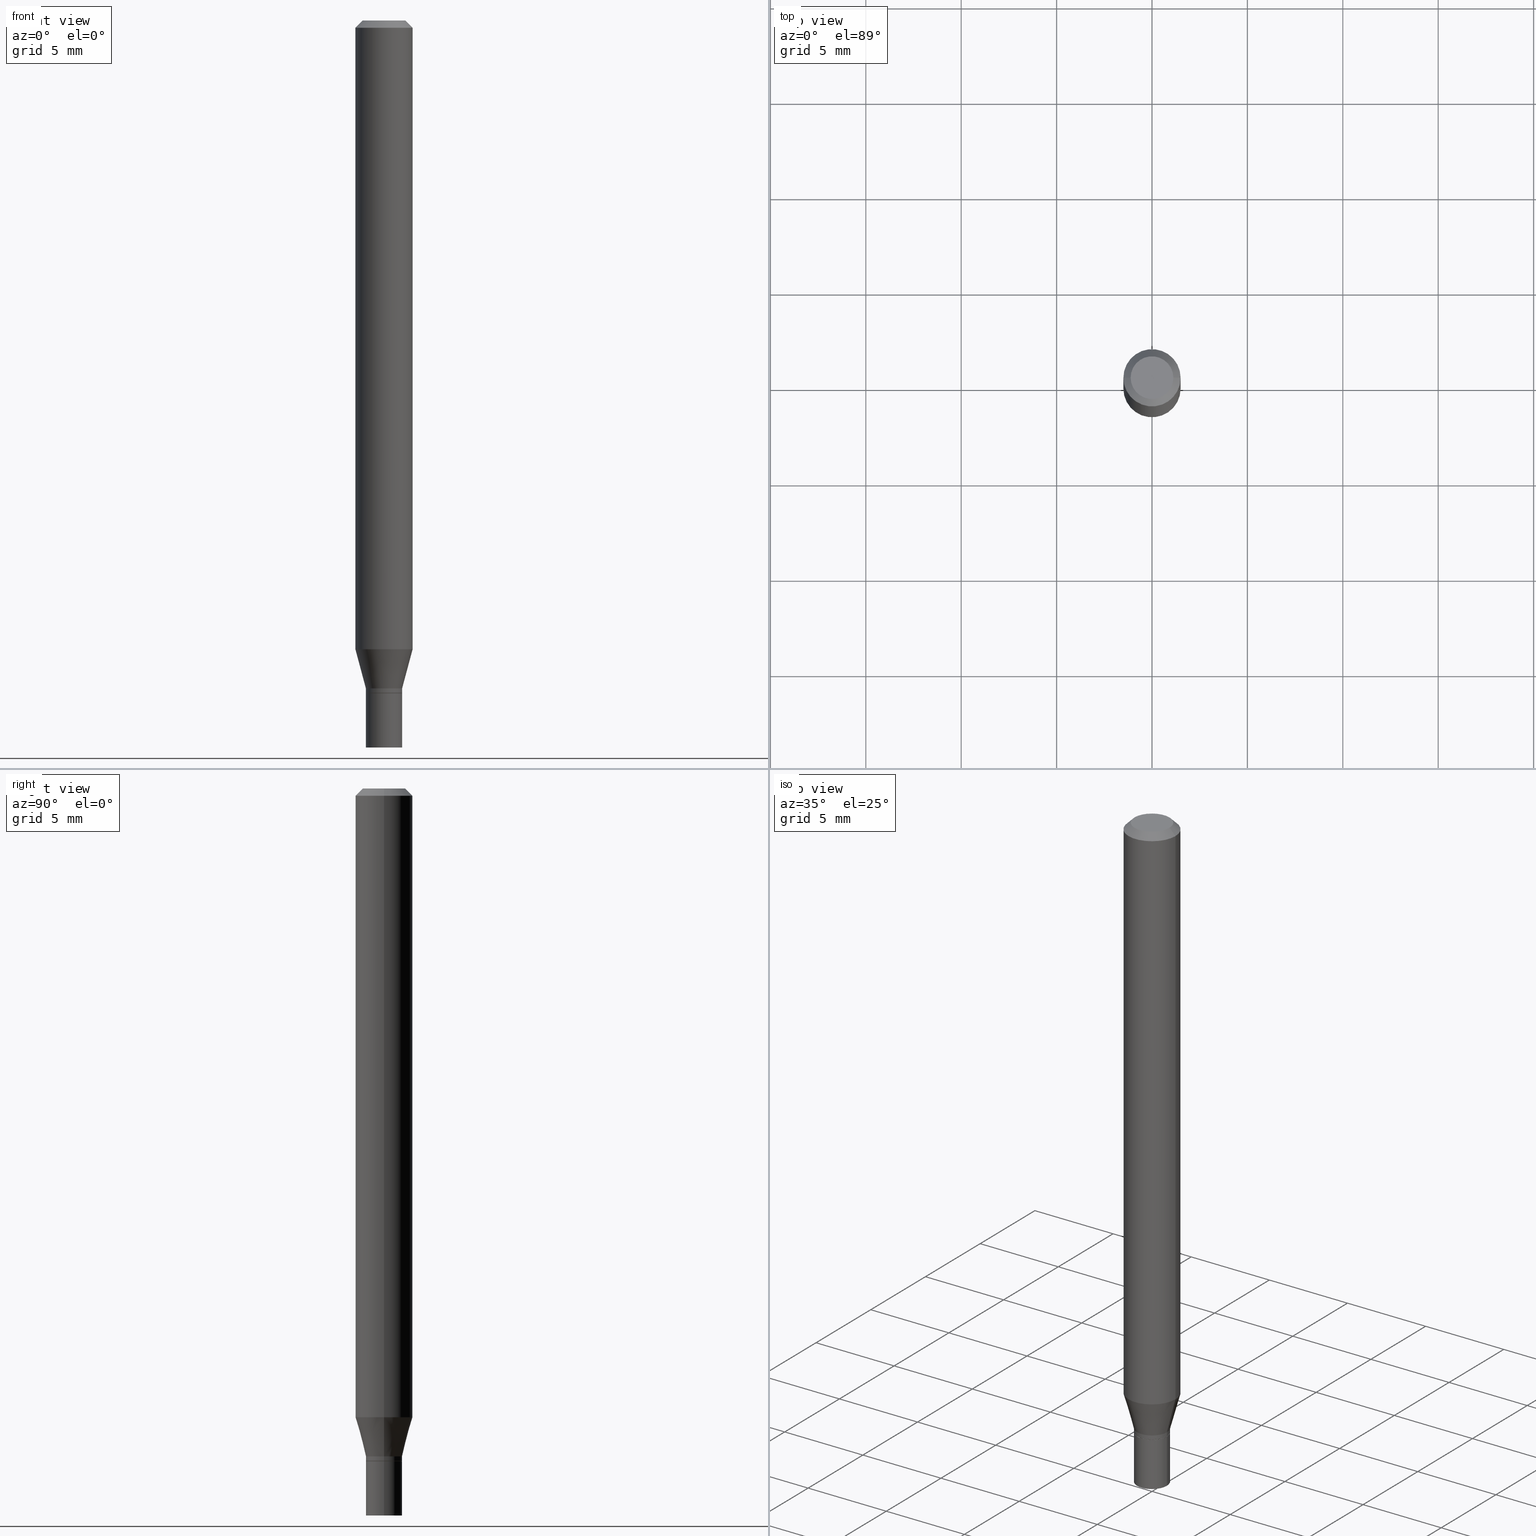
[diagram: canonical four-view strip — front | top / right | iso, engineering-drawing reading convention]
A machine part, canonical four-view strip (front | top / right | iso — engineering-drawing reading convention). The complete STEP part file that produces these views, byte-faithful:
ISO-10303-21;
HEADER;
FILE_DESCRIPTION (( 'STEP AP203' ),
    '1' );
FILE_NAME ('09289.STEP',
    '2024-03-14T18:22:06',
    ( '' ),
    ( '' ),
    'SwSTEP 2.0',
    'SolidWorks 2023',
    '' );
FILE_SCHEMA (( 'CONFIG_CONTROL_DESIGN' ));
ENDSEC;

DATA;
#1 = VECTOR ( 'NONE', #28, 39.37007874015748143 ) ;
#2 = EDGE_LOOP ( 'NONE', ( #115, #268, #117, #267 ) ) ;
#3 = DIRECTION ( 'NONE',  ( 2.438088387897960049E-29, -3.491481338843145188E-15, -1.000000000000000000 ) ) ;
#4 = PLANE ( 'NONE',  #407 ) ;
#5 = PLANE ( 'NONE',  #396 ) ;
#6 = ORIENTED_EDGE ( 'NONE', *, *, #340, .F. ) ;
#7 = DIRECTION ( 'NONE',  ( -2.445468806185136597E-29, 3.491481338843145583E-15, 1.000000000000000000 ) ) ;
#8 = CARTESIAN_POINT ( 'NONE',  ( 3.393821609223732485E-29, -4.845477802046516210E-15, -1.387799999999999923 ) ) ;
#9 = CONICAL_SURFACE ( 'NONE', #259, 0.05904999999999999832, 0.7853981633974445042 ) ;
#10 = VERTEX_POINT ( 'NONE', #406 ) ;
#11 = VECTOR ( 'NONE', #282, 39.37007874015748143 ) ;
#12 = VERTEX_POINT ( 'NONE', #187 ) ;
#13 = ORIENTED_EDGE ( 'NONE', *, *, #412, .T. ) ;
#14 = APPROVAL ( #199, 'UNSPECIFIED' ) ;
#15 = APPROVAL_DATE_TIME ( #113, #291 ) ;
#16 = CYLINDRICAL_SURFACE ( 'NONE', #210, 0.05904999999999999832 ) ;
#17 = DIRECTION ( 'NONE',  ( -2.445468806185136597E-29, 3.491481338843145583E-15, 1.000000000000000000 ) ) ;
#18 = COORDINATED_UNIVERSAL_TIME_OFFSET ( 5, 0, .BEHIND. ) ;
#19 = ORIENTED_EDGE ( 'NONE', *, *, #315, .T. ) ;
#20 = AXIS2_PLACEMENT_3D ( 'NONE', #203, #126, #284 ) ;
#21 = CIRCLE ( 'NONE', #398, 0.03739999999999964186 ) ;
#22 = ORIENTED_EDGE ( 'NONE', *, *, #238, .F. ) ;
#23 = ORIENTED_EDGE ( 'NONE', *, *, #164, .F. ) ;
#24 = ADVANCED_FACE ( 'NONE', ( #335 ), #441, .T. ) ;
#25 = APPROVAL_DATE_TIME ( #241, #14 ) ;
#26 = COORDINATED_UNIVERSAL_TIME_OFFSET ( 5, 0, .BEHIND. ) ;
#27 = LINE ( 'NONE', #166, #388 ) ;
#28 = DIRECTION ( 'NONE',  ( -2.445468806185136877E-29, 3.491481338843145188E-15, 1.000000000000000000 ) ) ;
#29 = AXIS2_PLACEMENT_3D ( 'NONE', #214, #138, #256 ) ;
#30 = VECTOR ( 'NONE', #101, 39.37007874015748143 ) ;
#31 = CARTESIAN_POINT ( 'NONE',  ( 3.369856014923118508E-29, -4.811261284925855529E-15, -1.378000000000000114 ) ) ;
#32 = DIRECTION ( 'NONE',  ( -2.445468806185136597E-29, 3.491481338843145583E-15, 1.000000000000000000 ) ) ;
#33 = DIRECTION ( 'NONE',  ( -2.445468806185136597E-29, 3.491481338843145583E-15, 1.000000000000000000 ) ) ;
#34 = EDGE_CURVE ( 'NONE', #289, #409, #54, .T. ) ;
#35 = CARTESIAN_POINT ( 'NONE',  ( 0.03740000000000000269, -5.498384812410185366E-15, -1.500000000000000222 ) ) ;
#36 = DIRECTION ( 'NONE',  ( -2.445468806185136597E-29, 3.491481338843145583E-15, 1.000000000000000000 ) ) ;
#37 = EDGE_CURVE ( 'NONE', #451, #297, #423, .T. ) ;
#38 = DIRECTION ( 'NONE',  ( -2.445468806185136597E-29, 3.491481338843145583E-15, 1.000000000000000000 ) ) ;
#39 = DIRECTION ( 'NONE',  ( -2.438088387897960049E-29, 3.491481338843145188E-15, 1.000000000000000000 ) ) ;
#40 = SHAPE_DEFINITION_REPRESENTATION ( #49, #360 ) ;
#41 = AXIS2_PLACEMENT_3D ( 'NONE', #316, #432, #239 ) ;
#42 = LOCAL_TIME ( 14, 22, 6.000000000000000000, #195 ) ;
#43 = CARTESIAN_POINT ( 'NONE',  ( 0.03740000000000000269, -5.106640606191984188E-15, -1.387800000000000145 ) ) ;
#44 = FACE_OUTER_BOUND ( 'NONE', #58, .T. ) ;
#45 = ORIENTED_EDGE ( 'NONE', *, *, #383, .T. ) ;
#46 = ORIENTED_EDGE ( 'NONE', *, *, #147, .T. ) ;
#47 = CIRCLE ( 'NONE', #215, 0.03690000000000000224 ) ;
#48 = CIRCLE ( 'NONE', #122, 0.03739999999999964880 ) ;
#49 = PRODUCT_DEFINITION_SHAPE ( 'NONE', 'NONE',  #277 ) ;
#50 = EDGE_CURVE ( 'NONE', #442, #266, #47, .T. ) ;
#51 = ORIENTED_EDGE ( 'NONE', *, *, #331, .T. ) ;
#52 = DIRECTION ( 'NONE',  ( -2.445468806185136597E-29, 3.491481338843145583E-15, 1.000000000000000000 ) ) ;
#53 = ORIENTED_EDGE ( 'NONE', *, *, #303, .T. ) ;
#54 = LINE ( 'NONE', #425, #292 ) ;
#55 = AXIS2_PLACEMENT_3D ( 'NONE', #141, #401, #181 ) ;
#56 = CC_DESIGN_APPROVAL ( #291, ( #277 ) ) ;
#57 = FACE_OUTER_BOUND ( 'NONE', #159, .T. ) ;
#58 = EDGE_LOOP ( 'NONE', ( #87, #448, #111, #436 ) ) ;
#59 = PERSON_AND_ORGANIZATION_ROLE ( 'design_owner' ) ;
#60 = CARTESIAN_POINT ( 'NONE',  ( 3.393821609223732485E-29, -4.845477802046516210E-15, -1.387799999999999923 ) ) ;
#61 = DATE_TIME_ROLE ( 'classification_date' ) ;
#62 = FACE_OUTER_BOUND ( 'NONE', #326, .T. ) ;
#63 = CARTESIAN_POINT ( 'NONE',  ( 3.668203209277704895E-29, -5.237222008264718177E-15, -1.500000000000000222 ) ) ;
#64 = ADVANCED_FACE ( 'NONE', ( #198 ), #200, .T. ) ;
#65 = ADVANCED_FACE ( 'NONE', ( #62 ), #192, .F. ) ;
#66 = DIRECTION ( 'NONE',  ( -2.445468806185136597E-29, 3.491481338843145583E-15, 1.000000000000000000 ) ) ;
#67 = LINE ( 'NONE', #420, #202 ) ;
#68 = AXIS2_PLACEMENT_3D ( 'NONE', #93, #32, #236 ) ;
#69 = CONICAL_SURFACE ( 'NONE', #237, 0.03739999999999964186, 0.2617993877991505736 ) ;
#70 = ORIENTED_EDGE ( 'NONE', *, *, #303, .F. ) ;
#71 = CARTESIAN_POINT ( 'NONE',  ( 0.05904999999999999832, -4.574846268510561447E-16, -0.01499999999999999944 ) ) ;
#72 = LINE ( 'NONE', #139, #338 ) ;
#73 = EDGE_LOOP ( 'NONE', ( #151, #222 ) ) ;
#74 = DIRECTION ( 'NONE',  ( -1.000000000000000000, 6.982962677686265922E-15, -4.876176775795935793E-29 ) ) ;
#75 = DIRECTION ( 'NONE',  ( 1.000000000000000000, -6.982962677686274599E-15, 0.000000000000000000 ) ) ;
#76 = ADVANCED_FACE ( 'NONE', ( #465 ), #418, .T. ) ;
#77 = ORIENTED_EDGE ( 'NONE', *, *, #262, .T. ) ;
#78 = DIRECTION ( 'NONE',  ( -1.000000000000000000, 6.982962677686266711E-15, 0.000000000000000000 ) ) ;
#79 = DIRECTION ( 'NONE',  ( -2.445468806185136597E-29, 3.491481338843145583E-15, 1.000000000000000000 ) ) ;
#80 = ORIENTED_EDGE ( 'NONE', *, *, #88, .F. ) ;
#81 = EDGE_CURVE ( 'NONE', #10, #294, #365, .T. ) ;
#82 = ORIENTED_EDGE ( 'NONE', *, *, #147, .F. ) ;
#83 = APPROVAL_PERSON_ORGANIZATION ( #220, #271, #120 ) ;
#84 = DIMENSIONAL_EXPONENTS ( 1.000000000000000000, 0.000000000000000000, 0.000000000000000000, 0.000000000000000000, 0.000000000000000000, 0.000000000000000000, 0.000000000000000000 ) ;
#85 = EDGE_LOOP ( 'NONE', ( #6, #226, #293, #146 ) ) ;
#86 = DIRECTION ( 'NONE',  ( 1.000000000000000000, -6.982962677686261189E-15, 0.000000000000000000 ) ) ;
#87 = ORIENTED_EDGE ( 'NONE', *, *, #288, .T. ) ;
#88 = EDGE_CURVE ( 'NONE', #289, #230, #327, .T. ) ;
#89 = AXIS2_PLACEMENT_3D ( 'NONE', #321, #105, #75 ) ;
#90 = DIRECTION ( 'NONE',  ( -2.445468806185136597E-29, 3.491481338843145583E-15, 1.000000000000000000 ) ) ;
#91 = LINE ( 'NONE', #343, #1 ) ;
#92 = CC_DESIGN_DATE_AND_TIME_ASSIGNMENT ( #419, #61, ( #352 ) ) ;
#93 = CARTESIAN_POINT ( 'NONE',  ( 0.000000000000000000, 0.000000000000000000, 0.000000000000000000 ) ) ;
#94 = LOCAL_TIME ( 14, 22, 6.000000000000000000, #371 ) ;
#95 = CARTESIAN_POINT ( 'NONE',  ( 0.05904999999999999832, -4.647161662000212105E-16, -0.01499999999999999944 ) ) ;
#96 = DESIGN_CONTEXT ( 'detailed design', #193, 'design' ) ;
#97 = ADVANCED_FACE ( 'NONE', ( #318 ), #351, .T. ) ;
#98 = CARTESIAN_POINT ( 'NONE',  ( -2.903582104602009454E-45, 4.145545716378002760E-31, 1.187331483132478339E-16 ) ) ;
#99 = ORIENTED_EDGE ( 'NONE', *, *, #362, .T. ) ;
#100 = AXIS2_PLACEMENT_3D ( 'NONE', #320, #36, #206 ) ;
#101 = DIRECTION ( 'NONE',  ( -2.445468806185136877E-29, 3.491481338843145188E-15, 1.000000000000000000 ) ) ;
#102 = CALENDAR_DATE ( 2024, 14, 3 ) ;
#103 = CARTESIAN_POINT ( 'NONE',  ( 3.392598874820640244E-29, -4.843732061377097073E-15, -1.387300000000000200 ) ) ;
#104 = LINE ( 'NONE', #246, #116 ) ;
#105 = DIRECTION ( 'NONE',  ( -2.445468806185136597E-29, 3.491481338843145583E-15, 1.000000000000000000 ) ) ;
#106 = FACE_OUTER_BOUND ( 'NONE', #73, .T. ) ;
#107 = VECTOR ( 'NONE', #379, 39.37007874015748143 ) ;
#108 = AXIS2_PLACEMENT_3D ( 'NONE', #8, #404, #458 ) ;
#109 = ORIENTED_EDGE ( 'NONE', *, *, #288, .F. ) ;
#110 = ORIENTED_EDGE ( 'NONE', *, *, #164, .T. ) ;
#111 = ORIENTED_EDGE ( 'NONE', *, *, #188, .F. ) ;
#112 = ORIENTED_EDGE ( 'NONE', *, *, #37, .F. ) ;
#113 = DATE_AND_TIME ( #162, #308 ) ;
#114 = CLOSED_SHELL ( 'NONE', ( #169, #97, #217, #229, #140, #322, #283, #64, #65, #170, #24, #440 ) ) ;
#115 = ORIENTED_EDGE ( 'NONE', *, *, #34, .F. ) ;
#116 = VECTOR ( 'NONE', #314, 39.37007874015748143 ) ;
#117 = ORIENTED_EDGE ( 'NONE', *, *, #231, .T. ) ;
#118 = PERSON_AND_ORGANIZATION ( #403, #455 ) ;
#119 = ORIENTED_EDGE ( 'NONE', *, *, #81, .F. ) ;
#120 = APPROVAL_ROLE ( '' ) ;
#121 = APPROVAL_STATUS ( 'not_yet_approved' ) ;
#122 = AXIS2_PLACEMENT_3D ( 'NONE', #243, #380, #353 ) ;
#123 = CARTESIAN_POINT ( 'NONE',  ( -0.03690000000000000224, -4.580638305376930884E-15, -1.387799999999999923 ) ) ;
#124 = DIRECTION ( 'NONE',  ( -2.445468806185136597E-29, 3.491481338843145583E-15, 1.000000000000000000 ) ) ;
#125 = CC_DESIGN_PERSON_AND_ORGANIZATION_ASSIGNMENT ( #264, #337, ( #352 ) ) ;
#126 = DIRECTION ( 'NONE',  ( -2.445468806185136597E-29, 3.491481338843145583E-15, 1.000000000000000000 ) ) ;
#127 = MANIFOLD_SOLID_BREP ( 'Body-Move/Copy2[2]', #114 ) ;
#128 = CLOSED_SHELL ( 'NONE', ( #461, #137, #76, #245 ) ) ;
#129 = CARTESIAN_POINT ( 'NONE',  ( 3.369856014923118508E-29, -4.811261284925855529E-15, -1.378000000000000114 ) ) ;
#130 = DIRECTION ( 'NONE',  ( 2.445468806185136597E-29, -3.491481338843145583E-15, -1.000000000000000000 ) ) ;
#131 = CYLINDRICAL_SURFACE ( 'NONE', #244, 0.03739999999999964880 ) ;
#132 =( NAMED_UNIT ( * ) SI_UNIT ( $, .STERADIAN. ) SOLID_ANGLE_UNIT ( ) );
#133 = CARTESIAN_POINT ( 'NONE',  ( 0.03739999999999964186, -5.072424089071318773E-15, -1.378000000000000114 ) ) ;
#134 = AXIS2_PLACEMENT_3D ( 'NONE', #172, #33, #168 ) ;
#135 = CARTESIAN_POINT ( 'NONE',  ( 0.000000000000000000, 0.000000000000000000, 0.000000000000000000 ) ) ;
#136 = DIRECTION ( 'NONE',  ( -2.445468806185136877E-29, 3.491481338843145188E-15, 1.000000000000000000 ) ) ;
#137 = ADVANCED_FACE ( 'NONE', ( #57 ), #309, .F. ) ;
#138 = DIRECTION ( 'NONE',  ( -2.445468806185136597E-29, 3.491481338843145583E-15, 1.000000000000000000 ) ) ;
#139 = CARTESIAN_POINT ( 'NONE',  ( -0.03690000000000000224, -4.583287532551039718E-15, -1.387799999999999923 ) ) ;
#140 = ADVANCED_FACE ( 'NONE', ( #252 ), #165, .T. ) ;
#141 = CARTESIAN_POINT ( 'NONE',  ( 0.000000000000000000, 0.000000000000000000, 0.000000000000000000 ) ) ;
#142 = VERTEX_POINT ( 'NONE', #43 ) ;
#143 = DATE_TIME_ROLE ( 'creation_date' ) ;
#144 = DIRECTION ( 'NONE',  ( 1.000000000000000000, -6.982962677686265922E-15, 4.888540261209747396E-29 ) ) ;
#145 = LOCAL_TIME ( 14, 22, 6.000000000000000000, #18 ) ;
#146 = ORIENTED_EDGE ( 'NONE', *, *, #466, .F. ) ;
#147 = EDGE_CURVE ( 'NONE', #286, #451, #299, .T. ) ;
#148 = DIRECTION ( 'NONE',  ( 1.000000000000000000, 0.000000000000000000, 0.000000000000000000 ) ) ;
#149 = ORIENTED_EDGE ( 'NONE', *, *, #362, .F. ) ;
#150 = DIRECTION ( 'NONE',  ( 1.000000000000000000, -6.982962677686266711E-15, 4.876176775795936353E-29 ) ) ;
#151 = ORIENTED_EDGE ( 'NONE', *, *, #383, .F. ) ;
#152 = PERSON_AND_ORGANIZATION_ROLE ( 'design_supplier' ) ;
#153 =( CONVERSION_BASED_UNIT ( 'INCH', #253 ) LENGTH_UNIT ( ) NAMED_UNIT ( #84 ) );
#154 = ORIENTED_EDGE ( 'NONE', *, *, #262, .F. ) ;
#155 = AXIS2_PLACEMENT_3D ( 'NONE', #344, #130, #375 ) ;
#156 = ORIENTED_EDGE ( 'NONE', *, *, #402, .F. ) ;
#157 = AXIS2_PLACEMENT_3D ( 'NONE', #433, #449, #369 ) ;
#158 = EDGE_CURVE ( 'NONE', #355, #142, #460, .T. ) ;
#159 = EDGE_LOOP ( 'NONE', ( #156, #119 ) ) ;
#160 = DIRECTION ( 'NONE',  ( 1.000000000000000000, -6.982962677686266711E-15, 4.876176775795936353E-29 ) ) ;
#161 = APPLICATION_PROTOCOL_DEFINITION ( 'international standard', 'config_control_design', 1994, #193 ) ;
#162 = CALENDAR_DATE ( 2024, 14, 3 ) ;
#163 = CARTESIAN_POINT ( 'NONE',  ( 0.05904999999999999832, -4.941497379550503120E-15, -1.297201100016132980 ) ) ;
#164 = EDGE_CURVE ( 'NONE', #442, #12, #72, .T. ) ;
#165 = CONICAL_SURFACE ( 'NONE', #416, 0.03739999999999964186, 0.2617993877991505736 ) ;
#166 = CARTESIAN_POINT ( 'NONE',  ( 0.05904999999999999832, -4.123439461173740327E-16, 2.879382386107500220E-30 ) ) ;
#167 = DIRECTION ( 'NONE',  ( 1.000000000000000000, -6.982962677686264344E-15, 0.000000000000000000 ) ) ;
#168 = DIRECTION ( 'NONE',  ( 1.000000000000000000, -6.982962677686273021E-15, 0.000000000000000000 ) ) ;
#169 = ADVANCED_FACE ( 'NONE', ( #393 ), #438, .T. ) ;
#170 = ADVANCED_FACE ( 'NONE', ( #106 ), #5, .F. ) ;
#171 = DIRECTION ( 'NONE',  ( -2.445468806185136597E-29, 3.491481338843145583E-15, 1.000000000000000000 ) ) ;
#172 = CARTESIAN_POINT ( 'NONE',  ( 3.172264825438498801E-29, -4.529153433433129778E-15, -1.297201100016132980 ) ) ;
#173 = AXIS2_PLACEMENT_3D ( 'NONE', #98, #66, #385 ) ;
#174 = PERSON_AND_ORGANIZATION_ROLE ( 'creator' ) ;
#175 = FACE_OUTER_BOUND ( 'NONE', #261, .T. ) ;
#176 =( LENGTH_UNIT ( ) NAMED_UNIT ( * ) SI_UNIT ( $, .METRE. ) );
#177 = DIRECTION ( 'NONE',  ( -0.7071067811865447972, 2.468850131082228267E-15, -0.7071067811865502373 ) ) ;
#178 = DIRECTION ( 'NONE',  ( 1.000000000000000000, -6.982962677686265922E-15, 4.876176775795935793E-29 ) ) ;
#179 =( GEOMETRIC_REPRESENTATION_CONTEXT ( 3 ) GLOBAL_UNCERTAINTY_ASSIGNED_CONTEXT ( ( #310 ) ) GLOBAL_UNIT_ASSIGNED_CONTEXT ( ( #153, #333, #132 ) ) REPRESENTATION_CONTEXT ( 'NONE', 'WORKASPACE' ) );
#180 = CARTESIAN_POINT ( 'NONE',  ( -2.903582104602009454E-45, 4.145545716378002760E-31, 1.187331483132478339E-16 ) ) ;
#181 = DIRECTION ( 'NONE',  ( 1.000000000000000000, -6.982962677686266711E-15, 4.876176775795935793E-29 ) ) ;
#182 = ORIENTED_EDGE ( 'NONE', *, *, #81, .T. ) ;
#183 = VECTOR ( 'NONE', #248, 39.37007874015748143 ) ;
#184 = CIRCLE ( 'NONE', #374, 0.05904999999999999832 ) ;
#185 = ORIENTED_EDGE ( 'NONE', *, *, #251, .T. ) ;
#186 = ORIENTED_EDGE ( 'NONE', *, *, #347, .T. ) ;
#187 = CARTESIAN_POINT ( 'NONE',  ( -0.03739999999999964880, -4.577989078202822049E-15, -1.387300000000000200 ) ) ;
#188 = EDGE_CURVE ( 'NONE', #297, #332, #190, .T. ) ;
#189 = CARTESIAN_POINT ( 'NONE',  ( 3.393821609223732485E-29, -4.845477802046516210E-15, -1.387799999999999923 ) ) ;
#190 = CIRCLE ( 'NONE', #29, 0.05904999999999999832 ) ;
#191 = AXIS2_PLACEMENT_3D ( 'NONE', #366, #233, #150 ) ;
#192 = PLANE ( 'NONE',  #307 ) ;
#193 = APPLICATION_CONTEXT ( 'configuration controlled 3d designs of mechanical parts and assemblies' ) ;
#194 = CARTESIAN_POINT ( 'NONE',  ( 3.369856014923118508E-29, -4.811261284925855529E-15, -1.378000000000000114 ) ) ;
#195 = COORDINATED_UNIVERSAL_TIME_OFFSET ( 5, 0, .BEHIND. ) ;
#196 = CARTESIAN_POINT ( 'NONE',  ( -0.05904999999999999832, -1.871187341291549133E-15, -0.01499999999999999944 ) ) ;
#197 = CARTESIAN_POINT ( 'NONE',  ( 0.000000000000000000, 0.000000000000000000, 0.000000000000000000 ) ) ;
#198 = FACE_OUTER_BOUND ( 'NONE', #370, .T. ) ;
#199 = APPROVAL_STATUS ( 'not_yet_approved' ) ;
#200 = CONICAL_SURFACE ( 'NONE', #155, 0.05904999999999999832, 0.7853981633974445042 ) ;
#201 = CARTESIAN_POINT ( 'NONE',  ( 0.04404999999999999888, -3.798447818264458600E-16, 1.187331483132502252E-16 ) ) ;
#202 = VECTOR ( 'NONE', #377, 39.37007874015748143 ) ;
#203 = CARTESIAN_POINT ( 'NONE',  ( 3.668203209277704895E-29, -5.237222008264718177E-15, -1.500000000000000222 ) ) ;
#204 = LINE ( 'NONE', #349, #11 ) ;
#205 = PRODUCT_RELATED_PRODUCT_CATEGORY ( 'detail', '', ( #330 ) ) ;
#206 = DIRECTION ( 'NONE',  ( 1.000000000000000000, -6.982962677686274599E-15, 0.000000000000000000 ) ) ;
#207 = LINE ( 'NONE', #435, #381 ) ;
#208 = AXIS2_PLACEMENT_3D ( 'NONE', #290, #213, #323 ) ;
#209 = DIRECTION ( 'NONE',  ( 1.000000000000000000, -6.982962677686264344E-15, 0.000000000000000000 ) ) ;
#210 = AXIS2_PLACEMENT_3D ( 'NONE', #197, #52, #160 ) ;
#211 = CARTESIAN_POINT ( 'NONE',  ( 3.075995059520799729E-16, 0.04404999999999999888, -9.443317881941664879E-17 ) ) ;
#212 = CC_DESIGN_PERSON_AND_ORGANIZATION_ASSIGNMENT ( #223, #152, ( #443 ) ) ;
#213 = DIRECTION ( 'NONE',  ( -2.445468806185136597E-29, 3.491481338843145583E-15, 1.000000000000000000 ) ) ;
#214 = CARTESIAN_POINT ( 'NONE',  ( 3.668203209277705088E-31, -5.237222008264718399E-17, -0.01499999999999999944 ) ) ;
#215 = AXIS2_PLACEMENT_3D ( 'NONE', #341, #38, #240 ) ;
#216 = AXIS2_PLACEMENT_3D ( 'NONE', #103, #171, #453 ) ;
#217 = ADVANCED_FACE ( 'NONE', ( #439 ), #9, .T. ) ;
#218 = DIRECTION ( 'NONE',  ( 1.000000000000000000, -6.982962677686264344E-15, 0.000000000000000000 ) ) ;
#219 = DIRECTION ( 'NONE',  ( 1.000000000000000000, -6.982962677686266711E-15, 0.000000000000000000 ) ) ;
#220 = PERSON_AND_ORGANIZATION ( #403, #455 ) ;
#221 = CARTESIAN_POINT ( 'NONE',  ( 0.000000000000000000, 0.000000000000000000, 0.000000000000000000 ) ) ;
#222 = ORIENTED_EDGE ( 'NONE', *, *, #50, .F. ) ;
#223 = PERSON_AND_ORGANIZATION ( #403, #455 ) ;
#224 = CYLINDRICAL_SURFACE ( 'NONE', #191, 0.05904999999999999832 ) ;
#225 = CIRCLE ( 'NONE', #462, 0.03740000000000000269 ) ;
#226 = ORIENTED_EDGE ( 'NONE', *, *, #382, .T. ) ;
#227 = CARTESIAN_POINT ( 'NONE',  ( 0.03690000000000000224, -5.103149124853139603E-15, -1.387799999999999923 ) ) ;
#228 = EDGE_LOOP ( 'NONE', ( #447, #185, #22, #325 ) ) ;
#229 = ADVANCED_FACE ( 'NONE', ( #44 ), #16, .T. ) ;
#230 = VERTEX_POINT ( 'NONE', #422 ) ;
#231 = EDGE_CURVE ( 'NONE', #230, #400, #348, .T. ) ;
#232 = DATE_AND_TIME ( #342, #42 ) ;
#233 = DIRECTION ( 'NONE',  ( -2.445468806185136597E-29, 3.491481338843145583E-15, 1.000000000000000000 ) ) ;
#234 = ORIENTED_EDGE ( 'NONE', *, *, #437, .F. ) ;
#235 = COORDINATED_UNIVERSAL_TIME_OFFSET ( 5, 0, .BEHIND. ) ;
#236 = DIRECTION ( 'NONE',  ( 1.000000000000000000, -6.982962677686266711E-15, 4.876176775795935793E-29 ) ) ;
#237 = AXIS2_PLACEMENT_3D ( 'NONE', #129, #429, #209 ) ;
#238 = EDGE_CURVE ( 'NONE', #142, #355, #358, .T. ) ;
#239 = DIRECTION ( 'NONE',  ( 1.000000000000000000, -6.982962677686265922E-15, 4.876176775795935793E-29 ) ) ;
#240 = DIRECTION ( 'NONE',  ( 1.000000000000000000, -6.982962677686261189E-15, 0.000000000000000000 ) ) ;
#241 = DATE_AND_TIME ( #414, #145 ) ;
#242 = DIRECTION ( 'NONE',  ( -2.445468806185136877E-29, 3.491481338843145188E-15, 1.000000000000000000 ) ) ;
#243 = CARTESIAN_POINT ( 'NONE',  ( 3.392598874820640244E-29, -4.843732061377097073E-15, -1.387300000000000200 ) ) ;
#244 = AXIS2_PLACEMENT_3D ( 'NONE', #135, #430, #354 ) ;
#245 = ADVANCED_FACE ( 'NONE', ( #175 ), #4, .F. ) ;
#246 = CARTESIAN_POINT ( 'NONE',  ( 0.03739999999999964880, -2.611628041454639350E-16, 1.823690114147662566E-30 ) ) ;
#247 = CARTESIAN_POINT ( 'NONE',  ( -0.04404999999999999888, 3.337856159934036604E-16, 1.187331483132455906E-16 ) ) ;
#248 = DIRECTION ( 'NONE',  ( 0.2588190451025218497, 1.565188264969618221E-15, 0.9659258262890679791 ) ) ;
#249 = LOCAL_TIME ( 14, 22, 6.000000000000000000, #235 ) ;
#250 = CARTESIAN_POINT ( 'NONE',  ( 2.611628041455002719E-16, 0.03739999999999515934, -1.387800000000000145 ) ) ;
#251 = EDGE_CURVE ( 'NONE', #10, #355, #279, .T. ) ;
#252 = FACE_OUTER_BOUND ( 'NONE', #450, .T. ) ;
#253 = LENGTH_MEASURE_WITH_UNIT ( LENGTH_MEASURE( 0.02539999999999999897 ), #176 );
#254 = DIRECTION ( 'NONE',  ( -0.7071067811865656694, 7.493145998870420424E-15, 0.7071067811865294761 ) ) ;
#255 = EDGE_LOOP ( 'NONE', ( #234, #13, #77, #80 ) ) ;
#256 = DIRECTION ( 'NONE',  ( 1.000000000000000000, -6.982962677686266711E-15, 0.000000000000000000 ) ) ;
#257 = ORIENTED_EDGE ( 'NONE', *, *, #37, .T. ) ;
#258 = CARTESIAN_POINT ( 'NONE',  ( 3.668203209277705088E-31, -5.237222008264718399E-17, -0.01499999999999999944 ) ) ;
#259 = AXIS2_PLACEMENT_3D ( 'NONE', #258, #399, #78 ) ;
#260 = EDGE_LOOP ( 'NONE', ( #23, #392, #51, #301 ) ) ;
#261 = EDGE_LOOP ( 'NONE', ( #324, #357 ) ) ;
#262 = EDGE_CURVE ( 'NONE', #445, #230, #104, .T. ) ;
#263 = EDGE_LOOP ( 'NONE', ( #364, #182, #19, #405 ) ) ;
#264 = PERSON_AND_ORGANIZATION ( #403, #455 ) ;
#265 = CIRCLE ( 'NONE', #216, 0.03739999999999964880 ) ;
#266 = VERTEX_POINT ( 'NONE', #227 ) ;
#267 = ORIENTED_EDGE ( 'NONE', *, *, #382, .F. ) ;
#268 = ORIENTED_EDGE ( 'NONE', *, *, #88, .T. ) ;
#269 = APPROVAL_ROLE ( '' ) ;
#270 = DIRECTION ( 'NONE',  ( 1.000000000000000000, -6.982962677686261189E-15, 0.000000000000000000 ) ) ;
#271 = APPROVAL ( #444, 'UNSPECIFIED' ) ;
#272 = DIRECTION ( 'NONE',  ( 2.438088387897960049E-29, -3.491481338843145188E-15, -1.000000000000000000 ) ) ;
#273 = PERSON_AND_ORGANIZATION ( #403, #455 ) ;
#274 = DIRECTION ( 'NONE',  ( 1.000000000000000000, -6.982962677686264344E-15, 0.000000000000000000 ) ) ;
#275 = DIRECTION ( 'NONE',  ( -0.2588190451025218497, 5.211531920934553408E-15, 0.9659258262890679791 ) ) ;
#276 = DIRECTION ( 'NONE',  ( -2.445468806185136597E-29, 3.491481338843145583E-15, 1.000000000000000000 ) ) ;
#277 = PRODUCT_DEFINITION ( 'UNKNOWN', '', #443, #96 ) ;
#278 = CC_DESIGN_APPROVAL ( #14, ( #352 ) ) ;
#279 = LINE ( 'NONE', #391, #328 ) ;
#280 = APPLICATION_CONTEXT ( 'configuration controlled 3d designs of mechanical parts and assemblies' ) ;
#281 = CARTESIAN_POINT ( 'NONE',  ( 0.03739999999999964880, -5.104894865522560318E-15, -1.387300000000000200 ) ) ;
#282 = DIRECTION ( 'NONE',  ( -2.445468806185136877E-29, 3.491481338843145188E-15, 1.000000000000000000 ) ) ;
#283 = ADVANCED_FACE ( 'NONE', ( #410 ), #224, .T. ) ;
#284 = DIRECTION ( 'NONE',  ( 1.000000000000000000, -6.982962677686274599E-15, 0.000000000000000000 ) ) ;
#285 = MANIFOLD_SOLID_BREP ( 'Body-Move/Copy2[1]', #128 ) ;
#286 = VERTEX_POINT ( 'NONE', #247 ) ;
#287 = AXIS2_PLACEMENT_3D ( 'NONE', #221, #363, #148 ) ;
#288 = EDGE_CURVE ( 'NONE', #400, #409, #434, .T. ) ;
#289 = VERTEX_POINT ( 'NONE', #311 ) ;
#290 = CARTESIAN_POINT ( 'NONE',  ( 0.000000000000000000, 0.000000000000000000, 0.000000000000000000 ) ) ;
#291 = APPROVAL ( #121, 'UNSPECIFIED' ) ;
#292 = VECTOR ( 'NONE', #275, 39.37007874015748143 ) ;
#293 = ORIENTED_EDGE ( 'NONE', *, *, #421, .T. ) ;
#294 = VERTEX_POINT ( 'NONE', #35 ) ;
#295 = SECURITY_CLASSIFICATION_LEVEL ( 'unclassified' ) ;
#296 = CC_DESIGN_PERSON_AND_ORGANIZATION_ASSIGNMENT ( #384, #174, ( #443 ) ) ;
#297 = VERTEX_POINT ( 'NONE', #95 ) ;
#298 = PERSON_AND_ORGANIZATION_ROLE ( 'creator' ) ;
#299 = CIRCLE ( 'NONE', #426, 0.04404999999999999888 ) ;
#300 = APPROVAL_PERSON_ORGANIZATION ( #118, #291, #269 ) ;
#301 = ORIENTED_EDGE ( 'NONE', *, *, #412, .F. ) ;
#302 = PERSON_AND_ORGANIZATION ( #403, #455 ) ;
#303 = EDGE_CURVE ( 'NONE', #451, #286, #367, .T. ) ;
#304 = EDGE_LOOP ( 'NONE', ( #70, #257, #329, #464 ) ) ;
#305 = DIRECTION ( 'NONE',  ( -2.445468806185136597E-29, 3.491481338843145583E-15, 1.000000000000000000 ) ) ;
#306 = APPROVAL_DATE_TIME ( #232, #271 ) ;
#307 = AXIS2_PLACEMENT_3D ( 'NONE', #211, #272, #376 ) ;
#308 = LOCAL_TIME ( 14, 22, 6.000000000000000000, #26 ) ;
#309 = PLANE ( 'NONE',  #41 ) ;
#310 = UNCERTAINTY_MEASURE_WITH_UNIT (LENGTH_MEASURE( 1.000000000000000082E-05 ), #153, 'distance_accuracy_value', 'NONE');
#311 = CARTESIAN_POINT ( 'NONE',  ( -0.03739999999999964186, -4.327548124859185395E-15, -1.378000000000000114 ) ) ;
#312 = AXIS2_PLACEMENT_3D ( 'NONE', #31, #90, #167 ) ;
#313 = CC_DESIGN_APPROVAL ( #271, ( #443 ) ) ;
#314 = DIRECTION ( 'NONE',  ( -2.445468806185136877E-29, 3.491481338843145188E-15, 1.000000000000000000 ) ) ;
#315 = EDGE_CURVE ( 'NONE', #294, #142, #204, .T. ) ;
#316 = CARTESIAN_POINT ( 'NONE',  ( 3.576687321579069994E-29, -5.368277968210015545E-15, -1.500000000000000222 ) ) ;
#317 = CARTESIAN_POINT ( 'NONE',  ( -0.03739999999999964880, 2.657429831742749741E-16, -1.839681723755317524E-30 ) ) ;
#318 = FACE_OUTER_BOUND ( 'NONE', #411, .T. ) ;
#319 = CIRCLE ( 'NONE', #108, 0.03690000000000000224 ) ;
#320 = CARTESIAN_POINT ( 'NONE',  ( 3.393821609223733045E-29, -4.845477802046517788E-15, -1.387800000000000145 ) ) ;
#321 = CARTESIAN_POINT ( 'NONE',  ( 3.393821609223733045E-29, -4.845477802046517788E-15, -1.387800000000000145 ) ) ;
#322 = ADVANCED_FACE ( 'NONE', ( #463 ), #69, .T. ) ;
#323 = DIRECTION ( 'NONE',  ( 1.000000000000000000, -6.982962677686266711E-15, 4.876176775795935232E-29 ) ) ;
#324 = ORIENTED_EDGE ( 'NONE', *, *, #238, .T. ) ;
#325 = ORIENTED_EDGE ( 'NONE', *, *, #315, .F. ) ;
#326 = EDGE_LOOP ( 'NONE', ( #46, #53 ) ) ;
#327 = CIRCLE ( 'NONE', #312, 0.03739999999999964186 ) ;
#328 = VECTOR ( 'NONE', #136, 39.37007874015748143 ) ;
#329 = ORIENTED_EDGE ( 'NONE', *, *, #188, .T. ) ;
#330 = PRODUCT ( '09289', '09289', '', ( #368 ) ) ;
#331 = EDGE_CURVE ( 'NONE', #266, #445, #67, .T. ) ;
#332 = VERTEX_POINT ( 'NONE', #196 ) ;
#333 =( NAMED_UNIT ( * ) PLANE_ANGLE_UNIT ( ) SI_UNIT ( $, .RADIAN. ) );
#334 = APPLICATION_PROTOCOL_DEFINITION ( 'international standard', 'config_control_design', 1994, #280 ) ;
#335 = FACE_OUTER_BOUND ( 'NONE', #260, .T. ) ;
#336 = ORIENTED_EDGE ( 'NONE', *, *, #331, .F. ) ;
#337 = PERSON_AND_ORGANIZATION_ROLE ( 'classification_officer' ) ;
#338 = VECTOR ( 'NONE', #254, 39.37007874015748143 ) ;
#339 = ORIENTED_EDGE ( 'NONE', *, *, #34, .T. ) ;
#340 = EDGE_CURVE ( 'NONE', #409, #332, #91, .T. ) ;
#341 = CARTESIAN_POINT ( 'NONE',  ( 3.393821609223732485E-29, -4.845477802046516210E-15, -1.387799999999999923 ) ) ;
#342 = CALENDAR_DATE ( 2024, 14, 3 ) ;
#343 = CARTESIAN_POINT ( 'NONE',  ( -0.05904999999999999832, 4.195754854663391478E-16, -2.904631170795521892E-30 ) ) ;
#344 = CARTESIAN_POINT ( 'NONE',  ( 3.668203209277705088E-31, -5.237222008264718399E-17, -0.01499999999999999944 ) ) ;
#345 = APPROVAL_ROLE ( '' ) ;
#346 = CC_DESIGN_SECURITY_CLASSIFICATION ( #352, ( #443 ) ) ;
#347 = EDGE_CURVE ( 'NONE', #230, #289, #21, .T. ) ;
#348 = LINE ( 'NONE', #133, #183 ) ;
#349 = CARTESIAN_POINT ( 'NONE',  ( 0.03740000000000000269, -2.611628041454664002E-16, 1.823690114147680082E-30 ) ) ;
#350 = CC_DESIGN_DATE_AND_TIME_ASSIGNMENT ( #397, #143, ( #277 ) ) ;
#351 = CONICAL_SURFACE ( 'NONE', #387, 0.03690000000000000224, 0.7853981633974739252 ) ;
#352 = SECURITY_CLASSIFICATION ( '', '', #295 ) ;
#353 = DIRECTION ( 'NONE',  ( 1.000000000000000000, -6.982962677686262766E-15, 0.000000000000000000 ) ) ;
#354 = DIRECTION ( 'NONE',  ( 1.000000000000000000, -6.982962677686266711E-15, 4.876176775795935232E-29 ) ) ;
#355 = VERTEX_POINT ( 'NONE', #424 ) ;
#356 = CARTESIAN_POINT ( 'NONE',  ( 3.668203209277705088E-31, -5.237222008264718399E-17, -0.01499999999999999944 ) ) ;
#357 = ORIENTED_EDGE ( 'NONE', *, *, #158, .T. ) ;
#358 = CIRCLE ( 'NONE', #100, 0.03740000000000000269 ) ;
#359 = CARTESIAN_POINT ( 'NONE',  ( 3.393821609223732485E-29, -4.845477802046516210E-15, -1.387799999999999923 ) ) ;
#360 = ADVANCED_BREP_SHAPE_REPRESENTATION ( '09289', ( #285, #127, #287 ), #179 ) ;
#361 = CYLINDRICAL_SURFACE ( 'NONE', #55, 0.03740000000000000269 ) ;
#362 = EDGE_CURVE ( 'NONE', #445, #12, #48, .T. ) ;
#363 = DIRECTION ( 'NONE',  ( 0.000000000000000000, 0.000000000000000000, 1.000000000000000000 ) ) ;
#364 = ORIENTED_EDGE ( 'NONE', *, *, #251, .F. ) ;
#365 = CIRCLE ( 'NONE', #20, 0.03740000000000000269 ) ;
#366 = CARTESIAN_POINT ( 'NONE',  ( 0.000000000000000000, 0.000000000000000000, 0.000000000000000000 ) ) ;
#367 = CIRCLE ( 'NONE', #173, 0.04404999999999999888 ) ;
#368 = MECHANICAL_CONTEXT ( 'NONE', #280, 'mechanical' ) ;
#369 = DIRECTION ( 'NONE',  ( 1.000000000000000000, -6.982962677686273021E-15, 0.000000000000000000 ) ) ;
#370 = EDGE_LOOP ( 'NONE', ( #112, #82, #390, #395 ) ) ;
#371 = COORDINATED_UNIVERSAL_TIME_OFFSET ( 5, 0, .BEHIND. ) ;
#372 = ORIENTED_EDGE ( 'NONE', *, *, #347, .F. ) ;
#373 = CC_DESIGN_PERSON_AND_ORGANIZATION_ASSIGNMENT ( #302, #59, ( #330 ) ) ;
#374 = AXIS2_PLACEMENT_3D ( 'NONE', #356, #79, #219 ) ;
#375 = DIRECTION ( 'NONE',  ( -1.000000000000000000, 6.982962677686266711E-15, 0.000000000000000000 ) ) ;
#376 = DIRECTION ( 'NONE',  ( -1.000000000000000000, 6.982962677686265922E-15, -4.876176775795935793E-29 ) ) ;
#377 = DIRECTION ( 'NONE',  ( 0.7071067811865656694, -2.468850131082446387E-15, 0.7071067811865294761 ) ) ;
#378 = CC_DESIGN_PERSON_AND_ORGANIZATION_ASSIGNMENT ( #446, #298, ( #277 ) ) ;
#379 = DIRECTION ( 'NONE',  ( 0.7071067811865447972, -7.319954787623246579E-15, -0.7071067811865502373 ) ) ;
#380 = DIRECTION ( 'NONE',  ( -2.445468806185136597E-29, 3.491481338843145583E-15, 1.000000000000000000 ) ) ;
#381 = VECTOR ( 'NONE', #177, 39.37007874015748143 ) ;
#382 = EDGE_CURVE ( 'NONE', #409, #400, #417, .T. ) ;
#383 = EDGE_CURVE ( 'NONE', #266, #442, #319, .T. ) ;
#384 = PERSON_AND_ORGANIZATION ( #403, #455 ) ;
#385 = DIRECTION ( 'NONE',  ( 1.000000000000000000, -6.982962677686265922E-15, 4.888540261209747396E-29 ) ) ;
#386 = CARTESIAN_POINT ( 'NONE',  ( -0.05904999999999999832, -4.109577947966790285E-15, -1.297201100016132980 ) ) ;
#387 = AXIS2_PLACEMENT_3D ( 'NONE', #60, #305, #270 ) ;
#388 = VECTOR ( 'NONE', #242, 39.37007874015748143 ) ;
#389 = LINE ( 'NONE', #317, #30 ) ;
#390 = ORIENTED_EDGE ( 'NONE', *, *, #428, .T. ) ;
#391 = CARTESIAN_POINT ( 'NONE',  ( -0.03740000000000000269, 2.657429831742774886E-16, -1.839681723755335040E-30 ) ) ;
#392 = ORIENTED_EDGE ( 'NONE', *, *, #50, .T. ) ;
#393 = FACE_OUTER_BOUND ( 'NONE', #408, .T. ) ;
#394 = DIRECTION ( 'NONE',  ( -2.445468806185136597E-29, 3.491481338843145583E-15, 1.000000000000000000 ) ) ;
#395 = ORIENTED_EDGE ( 'NONE', *, *, #466, .T. ) ;
#396 = AXIS2_PLACEMENT_3D ( 'NONE', #359, #39, #178 ) ;
#397 = DATE_AND_TIME ( #102, #249 ) ;
#398 = AXIS2_PLACEMENT_3D ( 'NONE', #456, #124, #274 ) ;
#399 = DIRECTION ( 'NONE',  ( 2.445468806185136597E-29, -3.491481338843145583E-15, -1.000000000000000000 ) ) ;
#400 = VERTEX_POINT ( 'NONE', #163 ) ;
#401 = DIRECTION ( 'NONE',  ( -2.445468806185136597E-29, 3.491481338843145583E-15, 1.000000000000000000 ) ) ;
#402 = EDGE_CURVE ( 'NONE', #294, #10, #225, .T. ) ;
#403 = PERSON ( 'UNSPECIFIED', 'UNSPECIFIED', 'UNSPECIFIED', ('UNSPECIFIED'), ('UNSPECIFIED'), ('UNSPECIFIED') ) ;
#404 = DIRECTION ( 'NONE',  ( -2.445468806185136597E-29, 3.491481338843145583E-15, 1.000000000000000000 ) ) ;
#405 = ORIENTED_EDGE ( 'NONE', *, *, #158, .F. ) ;
#406 = CARTESIAN_POINT ( 'NONE',  ( -0.03740000000000000269, -4.775606921981340198E-15, -1.500000000000000222 ) ) ;
#407 = AXIS2_PLACEMENT_3D ( 'NONE', #250, #3, #74 ) ;
#408 = EDGE_LOOP ( 'NONE', ( #99, #452, #372, #154 ) ) ;
#409 = VERTEX_POINT ( 'NONE', #386 ) ;
#410 = FACE_OUTER_BOUND ( 'NONE', #85, .T. ) ;
#411 = EDGE_LOOP ( 'NONE', ( #45, #110, #149, #336 ) ) ;
#412 = EDGE_CURVE ( 'NONE', #12, #445, #265, .T. ) ;
#413 = ORIENTED_EDGE ( 'NONE', *, *, #231, .F. ) ;
#414 = CALENDAR_DATE ( 2024, 14, 3 ) ;
#415 = CALENDAR_DATE ( 2024, 14, 3 ) ;
#416 = AXIS2_PLACEMENT_3D ( 'NONE', #194, #394, #218 ) ;
#417 = CIRCLE ( 'NONE', #157, 0.05904999999999999832 ) ;
#418 = CYLINDRICAL_SURFACE ( 'NONE', #68, 0.03740000000000000269 ) ;
#419 = DATE_AND_TIME ( #415, #94 ) ;
#420 = CARTESIAN_POINT ( 'NONE',  ( 0.03690000000000000224, -5.103149124853139603E-15, -1.387799999999999923 ) ) ;
#421 = EDGE_CURVE ( 'NONE', #400, #297, #27, .T. ) ;
#422 = CARTESIAN_POINT ( 'NONE',  ( 0.03739999999999964186, -5.072424089071318773E-15, -1.378000000000000114 ) ) ;
#423 = LINE ( 'NONE', #71, #107 ) ;
#424 = CARTESIAN_POINT ( 'NONE',  ( -0.03740000000000000269, -4.775606921981340198E-15, -1.387800000000000145 ) ) ;
#425 = CARTESIAN_POINT ( 'NONE',  ( -0.03739999999999964186, -4.545518301751580505E-15, -1.378000000000000114 ) ) ;
#426 = AXIS2_PLACEMENT_3D ( 'NONE', #180, #7, #144 ) ;
#427 = APPROVAL_PERSON_ORGANIZATION ( #273, #14, #345 ) ;
#428 = EDGE_CURVE ( 'NONE', #286, #332, #207, .T. ) ;
#429 = DIRECTION ( 'NONE',  ( -2.445468806185136597E-29, 3.491481338843145583E-15, 1.000000000000000000 ) ) ;
#430 = DIRECTION ( 'NONE',  ( -2.445468806185136597E-29, 3.491481338843145583E-15, 1.000000000000000000 ) ) ;
#431 = DIRECTION ( 'NONE',  ( 1.000000000000000000, -6.982962677686274599E-15, 0.000000000000000000 ) ) ;
#432 = DIRECTION ( 'NONE',  ( -2.438088387897960049E-29, 3.491481338843145188E-15, 1.000000000000000000 ) ) ;
#433 = CARTESIAN_POINT ( 'NONE',  ( 3.172264825438498801E-29, -4.529153433433129778E-15, -1.297201100016132980 ) ) ;
#434 = CIRCLE ( 'NONE', #134, 0.05904999999999999832 ) ;
#435 = CARTESIAN_POINT ( 'NONE',  ( -0.05904999999999999832, 3.599717260347268549E-16, -0.01499999999999999944 ) ) ;
#436 = ORIENTED_EDGE ( 'NONE', *, *, #421, .F. ) ;
#437 = EDGE_CURVE ( 'NONE', #12, #289, #389, .T. ) ;
#438 = CYLINDRICAL_SURFACE ( 'NONE', #208, 0.03739999999999964880 ) ;
#439 = FACE_OUTER_BOUND ( 'NONE', #304, .T. ) ;
#440 = ADVANCED_FACE ( 'NONE', ( #457 ), #131, .T. ) ;
#441 = CONICAL_SURFACE ( 'NONE', #454, 0.03690000000000000224, 0.7853981633974739252 ) ;
#442 = VERTEX_POINT ( 'NONE', #123 ) ;
#443 = PRODUCT_DEFINITION_FORMATION_WITH_SPECIFIED_SOURCE ( 'ANY', '', #330, .NOT_KNOWN. ) ;
#444 = APPROVAL_STATUS ( 'not_yet_approved' ) ;
#445 = VERTEX_POINT ( 'NONE', #281 ) ;
#446 = PERSON_AND_ORGANIZATION ( #403, #455 ) ;
#447 = ORIENTED_EDGE ( 'NONE', *, *, #402, .T. ) ;
#448 = ORIENTED_EDGE ( 'NONE', *, *, #340, .T. ) ;
#449 = DIRECTION ( 'NONE',  ( -2.445468806185136597E-29, 3.491481338843145583E-15, 1.000000000000000000 ) ) ;
#450 = EDGE_LOOP ( 'NONE', ( #186, #339, #109, #413 ) ) ;
#451 = VERTEX_POINT ( 'NONE', #201 ) ;
#452 = ORIENTED_EDGE ( 'NONE', *, *, #437, .T. ) ;
#453 = DIRECTION ( 'NONE',  ( 1.000000000000000000, -6.982962677686262766E-15, 0.000000000000000000 ) ) ;
#454 = AXIS2_PLACEMENT_3D ( 'NONE', #189, #17, #86 ) ;
#455 = ORGANIZATION ( 'UNSPECIFIED', 'UNSPECIFIED', '' ) ;
#456 = CARTESIAN_POINT ( 'NONE',  ( 3.369856014923118508E-29, -4.811261284925855529E-15, -1.378000000000000114 ) ) ;
#457 = FACE_OUTER_BOUND ( 'NONE', #255, .T. ) ;
#458 = DIRECTION ( 'NONE',  ( 1.000000000000000000, -6.982962677686261189E-15, 0.000000000000000000 ) ) ;
#459 = FACE_OUTER_BOUND ( 'NONE', #228, .T. ) ;
#460 = CIRCLE ( 'NONE', #89, 0.03740000000000000269 ) ;
#461 = ADVANCED_FACE ( 'NONE', ( #459 ), #361, .T. ) ;
#462 = AXIS2_PLACEMENT_3D ( 'NONE', #63, #276, #431 ) ;
#463 = FACE_OUTER_BOUND ( 'NONE', #2, .T. ) ;
#464 = ORIENTED_EDGE ( 'NONE', *, *, #428, .F. ) ;
#465 = FACE_OUTER_BOUND ( 'NONE', #263, .T. ) ;
#466 = EDGE_CURVE ( 'NONE', #332, #297, #184, .T. ) ;
ENDSEC;
END-ISO-10303-21;
